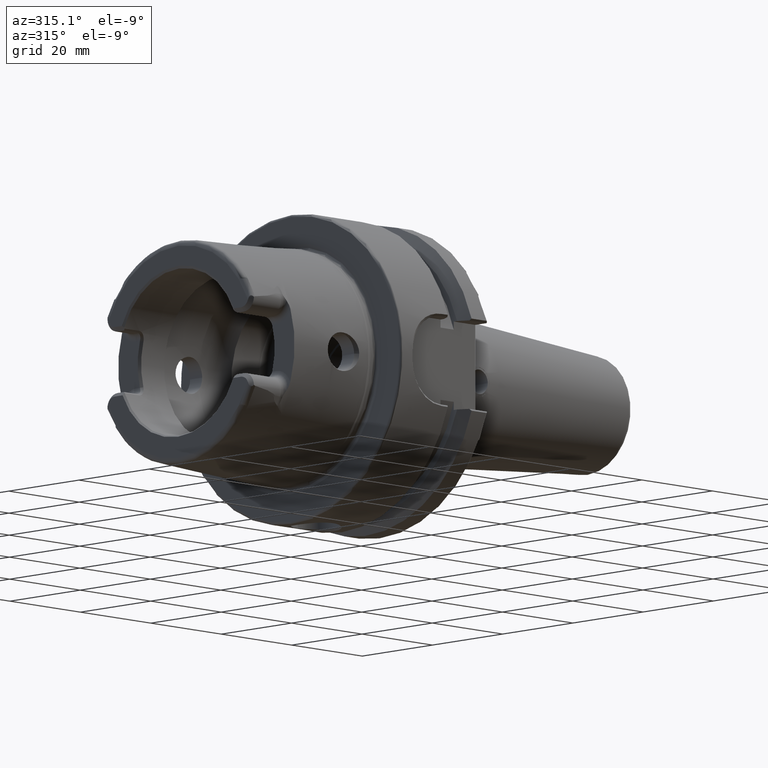
[diagram: clean part render]
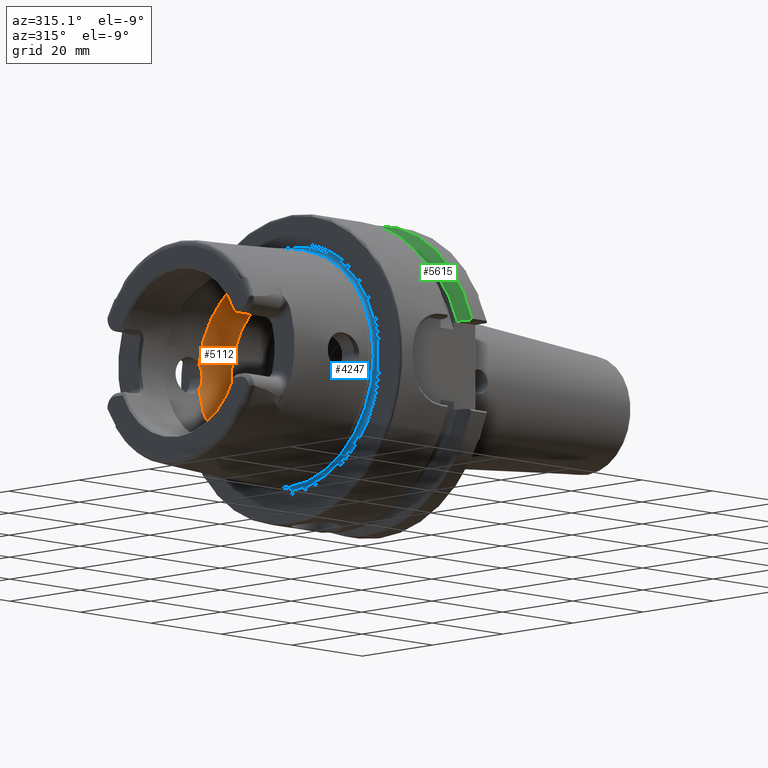
[diagram: same view with three faces highlighted in distinct colors, each labeled with its STEP entity id]
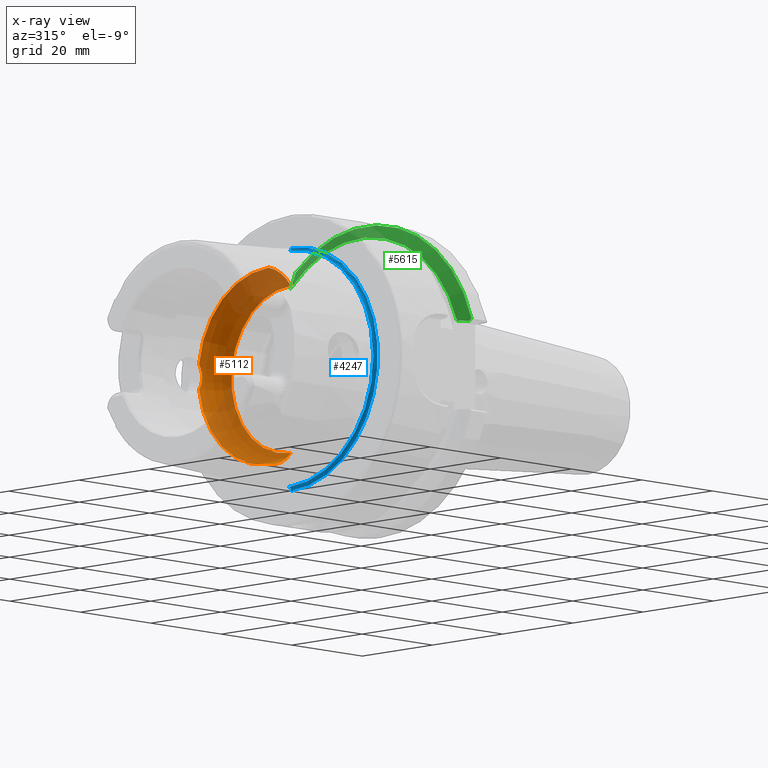
[diagram: x-ray of the same camera — body ghosted, the three highlighted faces saturated]
A machine part, auxiliary view with three faces highlighted in distinct colors.
The next image is the same camera in x-ray (body ghosted, the three faces saturated) — at least one of them is partly hidden behind the body in this view.
Their STEP definitions:

[orange] entity #5112 — the highlighted toroidal blend (fillet) surface has major radius 11.7986 mm and minor (blend) radius 8.2014 mm.
#191=CARTESIAN_POINT('',(9.100685570619E-2,0.E0,0.E0));
#192=DIRECTION('',(1.E0,0.E0,0.E0));
#193=DIRECTION('',(0.E0,0.E0,-1.E0));
#194=AXIS2_PLACEMENT_3D('',#191,#192,#193);
#1772=CARTESIAN_POINT('',(-5.25E0,1.993880636712E1,0.E0));
#1773=CARTESIAN_POINT('',(-5.25E0,1.993880636712E1,-2.232966073821E-1));
#1774=CARTESIAN_POINT('',(-5.289411510405E0,1.993633365189E1,
-6.797937079503E-1));
#1775=CARTESIAN_POINT('',(-5.488290434370E0,1.992204764600E1,
-1.383194941896E0));
#1776=CARTESIAN_POINT('',(-5.823011759718E0,1.989111915045E1,
-2.033654081724E0));
#1777=CARTESIAN_POINT('',(-6.101283299350E0,1.985745106764E1,
-2.389098161705E0));
#1778=CARTESIAN_POINT('',(-6.25E0,1.983683432405E1,-2.549509756796E0));
#1780=CARTESIAN_POINT('',(-6.25E0,1.983683432405E1,2.549509756796E0));
#1781=CARTESIAN_POINT('',(-6.101748857213E0,1.985738652689E1,2.389600330454E0));
#1782=CARTESIAN_POINT('',(-5.824328578687E0,1.989096611667E1,2.035393791106E0));
#1783=CARTESIAN_POINT('',(-5.490534556484E0,1.992186156005E1,1.388204097733E0));
#1784=CARTESIAN_POINT('',(-5.290704077549E0,1.993625163992E1,
6.873696590481E-1));
#1785=CARTESIAN_POINT('',(-5.25E0,1.993880636712E1,2.265312399457E-1));
#1786=CARTESIAN_POINT('',(-5.25E0,1.993880636712E1,0.E0));
#1788=CARTESIAN_POINT('',(-6.25E0,1.983683432405E1,-2.549509756796E0));
#1804=CARTESIAN_POINT('',(-6.25E0,0.E0,0.E0));
#1805=DIRECTION('',(1.E0,0.E0,0.E0));
#1806=DIRECTION('',(0.E0,0.E0,-1.E0));
#1807=AXIS2_PLACEMENT_3D('',#1804,#1805,#1806);
#1809=CARTESIAN_POINT('',(-6.25E0,0.E0,0.E0));
#1810=DIRECTION('',(1.E0,0.E0,0.E0));
#1811=DIRECTION('',(0.E0,9.918417211620E-1,1.274754884772E-1));
#1812=AXIS2_PLACEMENT_3D('',#1809,#1810,#1811);
#1828=CARTESIAN_POINT('',(-6.25E0,1.983683432405E1,2.549509756796E0));
#1888=CARTESIAN_POINT('',(-6.25E0,0.E0,-1.179860506927E1));
#1889=DIRECTION('',(0.E0,1.E0,0.E0));
#1890=DIRECTION('',(7.731620031199E-1,0.E0,-6.342085752586E-1));
#1891=AXIS2_PLACEMENT_3D('',#1888,#1889,#1890);
#1893=CARTESIAN_POINT('',(-6.25E0,0.E0,1.179860506927E1));
#1894=DIRECTION('',(0.E0,-1.E0,0.E0));
#1895=DIRECTION('',(7.731620031199E-1,0.E0,6.342085752586E-1));
#1896=AXIS2_PLACEMENT_3D('',#1893,#1894,#1895);
#2723=CARTESIAN_POINT('',(9.100685570619E-2,0.E0,-1.7E1));
#2724=CARTESIAN_POINT('',(9.100685570619E-2,0.E0,1.7E1));
#2725=VERTEX_POINT('',#2723);
#2726=VERTEX_POINT('',#2724);
#2727=CARTESIAN_POINT('',(-6.25E0,0.E0,-1.99999999E1));
#2728=VERTEX_POINT('',#2727);
#2729=CARTESIAN_POINT('',(-6.25E0,0.E0,1.99999999E1));
#2730=VERTEX_POINT('',#2729);
#3018=VERTEX_POINT('',#1788);
#3020=VERTEX_POINT('',#1828);
#3024=VERTEX_POINT('',#1772);
#5094=CARTESIAN_POINT('',(-6.25E0,0.E0,0.E0));
#5095=DIRECTION('',(1.E0,0.E0,0.E0));
#5096=DIRECTION('',(0.E0,0.E0,1.E0));
#5097=AXIS2_PLACEMENT_3D('',#5094,#5095,#5096);
#5098=TOROIDAL_SURFACE('',#5097,1.179860506927E1,8.201394830732E0);
#5099=ORIENTED_EDGE('',*,*,#5071,.F.);
#5100=ORIENTED_EDGE('',*,*,#5013,.F.);
#5102=ORIENTED_EDGE('',*,*,#5101,.T.);
#5104=ORIENTED_EDGE('',*,*,#5103,.F.);
#5105=ORIENTED_EDGE('',*,*,#3387,.F.);
#5107=ORIENTED_EDGE('',*,*,#5106,.T.);
#5109=ORIENTED_EDGE('',*,*,#5108,.T.);
#5110=EDGE_LOOP('',(#5099,#5100,#5102,#5104,#5105,#5107,#5109));
#5111=FACE_OUTER_BOUND('',#5110,.F.);
#5112=ADVANCED_FACE('',(#5111),#5098,.F.);
#195=CIRCLE('',#194,1.7E1);
#1779=B_SPLINE_CURVE_WITH_KNOTS('',3,(#1772,#1773,#1774,#1775,#1776,#1777,
#1778),.UNSPECIFIED.,.F.,.F.,(4,1,1,1,4),(0.E0,2.5E-1,5.E-1,7.5E-1,1.E0),
.UNSPECIFIED.);
#1787=B_SPLINE_CURVE_WITH_KNOTS('',3,(#1780,#1781,#1782,#1783,#1784,#1785,
#1786),.UNSPECIFIED.,.F.,.F.,(4,1,1,1,4),(0.E0,2.5E-1,5.E-1,7.5E-1,1.E0),
.UNSPECIFIED.);
#1808=CIRCLE('',#1807,1.99999999E1);
#1813=CIRCLE('',#1812,1.99999999E1);
#1892=CIRCLE('',#1891,8.201394830732E0);
#1897=CIRCLE('',#1896,8.201394830732E0);
#3387=EDGE_CURVE('',#2725,#2726,#195,.T.);
#5013=EDGE_CURVE('',#3020,#3024,#1787,.T.);
#5071=EDGE_CURVE('',#3024,#3018,#1779,.T.);
#5101=EDGE_CURVE('',#3020,#2730,#1813,.T.);
#5103=EDGE_CURVE('',#2726,#2730,#1897,.T.);
#5106=EDGE_CURVE('',#2725,#2728,#1892,.T.);
#5108=EDGE_CURVE('',#2728,#3018,#1808,.T.);

[blue] entity #4247 — the highlighted toroidal blend (fillet) surface has major radius 24.6204 mm and minor (blend) radius 0.6 mm.
#1099=CARTESIAN_POINT('',(-4.934638757493E-1,-4.764327821150E-12,2.46204E1));
#1100=DIRECTION('',(0.E0,1.E0,1.935118731922E-13));
#1101=DIRECTION('',(9.902680687429E-1,-2.693154809066E-14,1.391731009505E-1));
#1102=AXIS2_PLACEMENT_3D('',#1099,#1100,#1101);
#1104=CARTESIAN_POINT('',(-4.934638757493E-1,4.761219196681E-12,-2.46204E1));
#1105=DIRECTION('',(0.E0,-1.E0,-1.933852383784E-13));
#1106=DIRECTION('',(9.902680687429E-1,2.691392393095E-14,-1.391731009505E-1));
#1107=AXIS2_PLACEMENT_3D('',#1104,#1105,#1106);
#1109=CARTESIAN_POINT('',(1.006969654957E-1,0.E0,0.E0));
#1110=DIRECTION('',(-1.E0,0.E0,0.E0));
#1111=DIRECTION('',(0.E0,0.E0,-1.E0));
#1112=AXIS2_PLACEMENT_3D('',#1109,#1110,#1111);
#1122=CARTESIAN_POINT('',(-4.934638757493E-1,0.E0,0.E0));
#1123=DIRECTION('',(-1.E0,0.E0,0.E0));
#1124=DIRECTION('',(0.E0,0.E0,-1.E0));
#1125=AXIS2_PLACEMENT_3D('',#1122,#1123,#1124);
#2767=CARTESIAN_POINT('',(1.006969654957E-1,0.E0,-2.470390386058E1));
#2768=CARTESIAN_POINT('',(1.006969654957E-1,0.E0,2.470390386058E1));
#2769=VERTEX_POINT('',#2767);
#2770=VERTEX_POINT('',#2768);
#2771=CARTESIAN_POINT('',(-4.934638757493E-1,0.E0,-2.40204E1));
#2772=CARTESIAN_POINT('',(-4.934638757493E-1,0.E0,2.40204E1));
#2773=VERTEX_POINT('',#2771);
#2774=VERTEX_POINT('',#2772);
#4234=CARTESIAN_POINT('',(-4.934638757493E-1,0.E0,0.E0));
#4235=DIRECTION('',(1.E0,0.E0,0.E0));
#4236=DIRECTION('',(0.E0,6.358125017533E-3,-9.999797869188E-1));
#4237=AXIS2_PLACEMENT_3D('',#4234,#4235,#4236);
#4238=TOROIDAL_SURFACE('',#4237,2.46204E1,6.E-1);
#4240=ORIENTED_EDGE('',*,*,#4239,.F.);
#4241=ORIENTED_EDGE('',*,*,#4229,.T.);
#4243=ORIENTED_EDGE('',*,*,#4242,.T.);
#4244=ORIENTED_EDGE('',*,*,#4225,.F.);
#4245=EDGE_LOOP('',(#4240,#4241,#4243,#4244));
#4246=FACE_OUTER_BOUND('',#4245,.F.);
#4247=ADVANCED_FACE('',(#4246),#4238,.F.);
#1103=CIRCLE('',#1102,6.E-1);
#1108=CIRCLE('',#1107,6.E-1);
#1113=CIRCLE('',#1112,2.470390386058E1);
#1126=CIRCLE('',#1125,2.40204E1);
#4225=EDGE_CURVE('',#2770,#2774,#1103,.T.);
#4229=EDGE_CURVE('',#2769,#2773,#1108,.T.);
#4239=EDGE_CURVE('',#2769,#2770,#1113,.T.);
#4242=EDGE_CURVE('',#2773,#2774,#1126,.T.);

[green] entity #5615 — the highlighted conical surface has half-angle 60 deg.
#2220=CARTESIAN_POINT('',(2.137749905409E1,-3.007314630073E1,9.373146300730E0));
#2221=CARTESIAN_POINT('',(2.133222858504E1,-3.001053107025E1,9.310531070253E0));
#2222=CARTESIAN_POINT('',(2.124208744942E1,-2.988572482499E1,9.185724824991E0));
#2223=CARTESIAN_POINT('',(2.115274621449E1,-2.976176690400E1,9.061766903995E0));
#2224=CARTESIAN_POINT('',(2.110827564058E1,-2.97E1,9.E0));
#2226=CARTESIAN_POINT('',(1.9875E1,-2.746035349595E1,9.E0));
#2227=CARTESIAN_POINT('',(2.000815730744E1,-2.770305988737E1,9.E0));
#2228=CARTESIAN_POINT('',(2.027705920850E1,-2.819256428174E1,9.E0));
#2229=CARTESIAN_POINT('',(2.068812000744E1,-2.893903747045E1,9.E0));
#2230=CARTESIAN_POINT('',(2.096736261765E1,-2.944497148241E1,9.E0));
#2231=CARTESIAN_POINT('',(2.110827564058E1,-2.97E1,9.E0));
#2233=CARTESIAN_POINT('',(1.9875E1,0.E0,0.E0));
#2234=DIRECTION('',(-1.E0,0.E0,0.E0));
#2235=DIRECTION('',(0.E0,-9.502643112990E-1,3.114445996827E-1));
#2236=AXIS2_PLACEMENT_3D('',#2233,#2234,#2235);
#2238=CARTESIAN_POINT('',(1.9875E1,2.E1,2.085835597842E1));
#2239=CARTESIAN_POINT('',(2.002736603842E1,2.E1,2.122397638966E1));
#2240=CARTESIAN_POINT('',(2.034173038323E1,2.E1,2.196910957718E1));
#2241=CARTESIAN_POINT('',(2.084201817974E1,2.E1,2.312741859173E1));
#2242=CARTESIAN_POINT('',(2.119567680937E1,2.E1,2.392855749531E1));
#2243=CARTESIAN_POINT('',(2.137749905409E1,2.E1,2.433618704728E1));
#2245=CARTESIAN_POINT('',(2.137749905409E1,0.E0,0.E0));
#2246=DIRECTION('',(1.E0,0.E0,0.E0));
#2247=DIRECTION('',(0.E0,6.349206349206E-1,7.725773665802E-1));
#2248=AXIS2_PLACEMENT_3D('',#2245,#2246,#2247);
#2833=CARTESIAN_POINT('',(1.9875E1,-2.746035349595E1,9.E0));
#2834=VERTEX_POINT('',#2833);
#2855=CARTESIAN_POINT('',(1.9875E1,2.E1,2.085835597842E1));
#2857=VERTEX_POINT('',#2855);
#2861=VERTEX_POINT('',#2243);
#3053=VERTEX_POINT('',#2220);
#3054=VERTEX_POINT('',#2224);
#5601=CARTESIAN_POINT('',(2.062624952704E1,0.E0,0.E0));
#5602=DIRECTION('',(1.E0,0.E0,0.E0));
#5603=DIRECTION('',(0.E0,0.E0,1.E0));
#5604=AXIS2_PLACEMENT_3D('',#5601,#5602,#5603);
#5605=CONICAL_SURFACE('',#5604,3.019879765E1,6.E1);
#5606=ORIENTED_EDGE('',*,*,#5351,.T.);
#5607=ORIENTED_EDGE('',*,*,#5385,.F.);
#5609=ORIENTED_EDGE('',*,*,#5608,.T.);
#5611=ORIENTED_EDGE('',*,*,#5610,.T.);
#5612=ORIENTED_EDGE('',*,*,#4070,.T.);
#5613=EDGE_LOOP('',(#5606,#5607,#5609,#5611,#5612));
#5614=FACE_OUTER_BOUND('',#5613,.F.);
#5615=ADVANCED_FACE('',(#5614),#5605,.T.);
#2225=B_SPLINE_CURVE_WITH_KNOTS('',3,(#2220,#2221,#2222,#2223,#2224),
.UNSPECIFIED.,.F.,.F.,(4,1,4),(0.E0,5.E-1,1.E0),.UNSPECIFIED.);
#2232=B_SPLINE_CURVE_WITH_KNOTS('',3,(#2226,#2227,#2228,#2229,#2230,#2231),
.UNSPECIFIED.,.F.,.F.,(4,1,1,4),(0.E0,3.333333333333E-1,6.666666666667E-1,1.E0),
.UNSPECIFIED.);
#2237=CIRCLE('',#2236,2.88975953E1);
#2244=B_SPLINE_CURVE_WITH_KNOTS('',3,(#2238,#2239,#2240,#2241,#2242,#2243),
.UNSPECIFIED.,.F.,.F.,(4,1,1,4),(0.E0,3.333333333333E-1,6.666666666667E-1,1.E0),
.UNSPECIFIED.);
#2249=CIRCLE('',#2248,3.15E1);
#4070=EDGE_CURVE('',#2861,#3053,#2249,.T.);
#5351=EDGE_CURVE('',#3053,#3054,#2225,.T.);
#5385=EDGE_CURVE('',#2834,#3054,#2232,.T.);
#5608=EDGE_CURVE('',#2834,#2857,#2237,.T.);
#5610=EDGE_CURVE('',#2857,#2861,#2244,.T.);